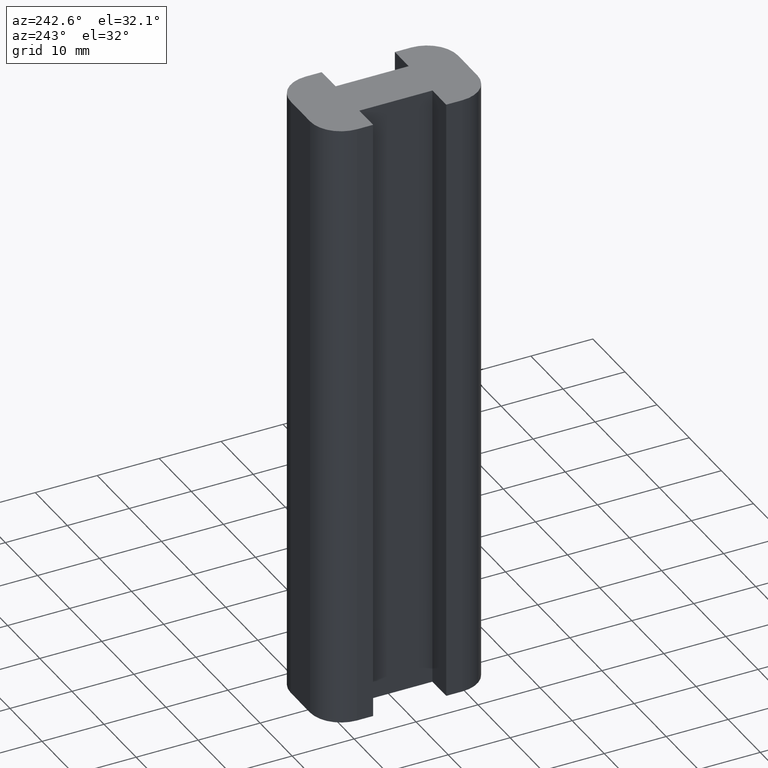
[diagram: clean part render]
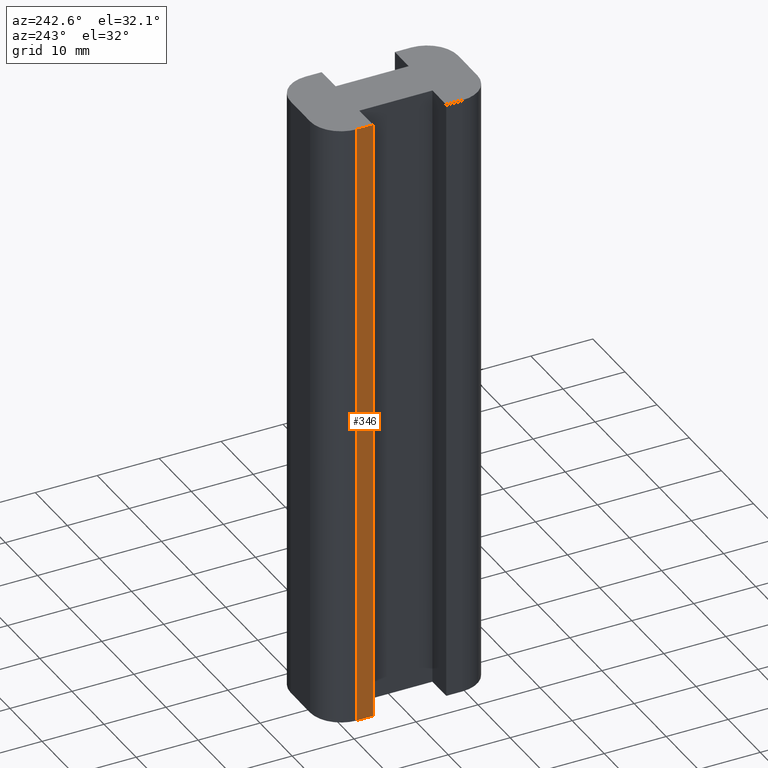
[diagram: same view with one face highlighted and labeled with its STEP entity id]
A machine part, auxiliary view. The second image highlights one B-rep face of the part: STEP entity #346.
In plain terms, the highlighted planar face has unit normal (-1, 0, 0).
Its self-contained STEP definition (entity closure, byte-faithful):
#25=PLANE('',#372);
#42=FACE_OUTER_BOUND('',#60,.T.);
#60=EDGE_LOOP('',(#285,#286,#287,#288));
#98=LINE('',#554,#138);
#99=LINE('',#557,#139);
#100=LINE('',#559,#140);
#101=LINE('',#560,#141);
#138=VECTOR('',#452,100.);
#139=VECTOR('',#455,2.6);
#140=VECTOR('',#456,2.6);
#141=VECTOR('',#457,100.);
#179=VERTEX_POINT('',#550);
#180=VERTEX_POINT('',#552);
#181=VERTEX_POINT('',#556);
#182=VERTEX_POINT('',#558);
#224=EDGE_CURVE('',#179,#180,#98,.T.);
#225=EDGE_CURVE('',#179,#181,#99,.T.);
#226=EDGE_CURVE('',#182,#180,#100,.T.);
#227=EDGE_CURVE('',#181,#182,#101,.T.);
#285=ORIENTED_EDGE('',*,*,#225,.F.);
#286=ORIENTED_EDGE('',*,*,#224,.T.);
#287=ORIENTED_EDGE('',*,*,#226,.F.);
#288=ORIENTED_EDGE('',*,*,#227,.F.);
#346=ADVANCED_FACE('',(#42),#25,.T.);
#372=AXIS2_PLACEMENT_3D('',#555,#453,#454);
#452=DIRECTION('',(0.,0.,1.));
#453=DIRECTION('center_axis',(-1.,0.,0.));
#454=DIRECTION('ref_axis',(0.,-1.,0.));
#455=DIRECTION('',(0.,1.,0.));
#456=DIRECTION('',(0.,-1.,0.));
#457=DIRECTION('',(0.,0.,1.));
#550=CARTESIAN_POINT('',(-8.,5.9,0.));
#552=CARTESIAN_POINT('',(-8.,5.9,100.));
#554=CARTESIAN_POINT('',(-8.,5.9,0.));
#555=CARTESIAN_POINT('Origin',(-8.,8.5,0.));
#556=CARTESIAN_POINT('',(-8.,8.5,0.));
#557=CARTESIAN_POINT('',(-8.,5.9,0.));
#558=CARTESIAN_POINT('',(-8.,8.5,100.));
#559=CARTESIAN_POINT('',(-8.,5.9,100.));
#560=CARTESIAN_POINT('',(-8.,8.5,0.));